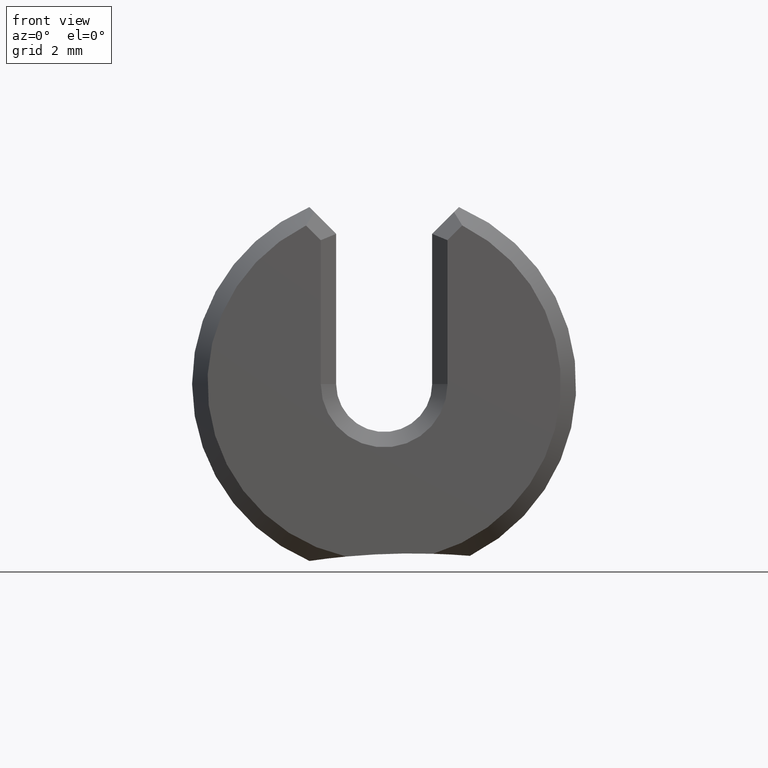
[diagram: clean part render]
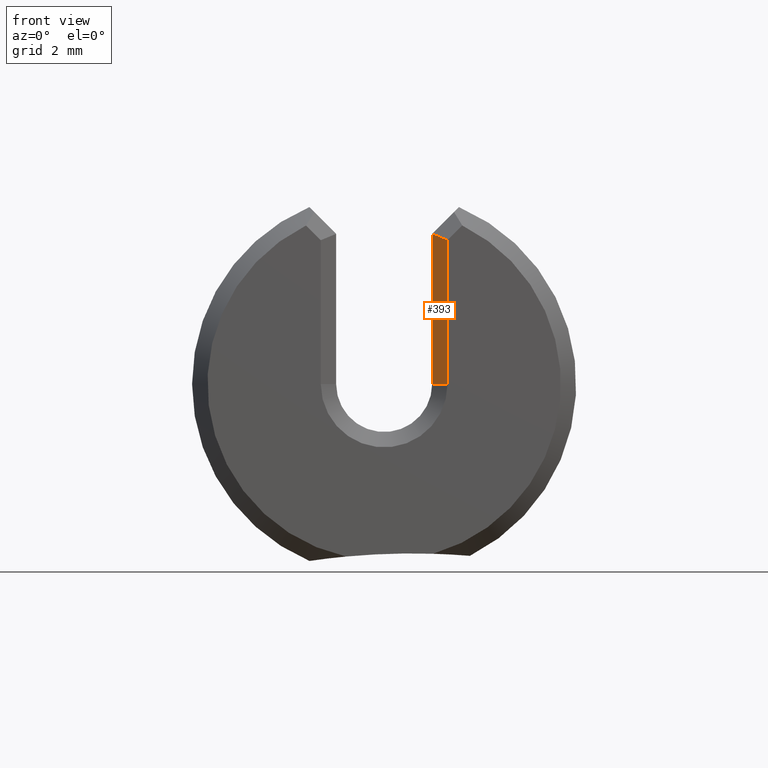
[diagram: same view with one face highlighted and labeled with its STEP entity id]
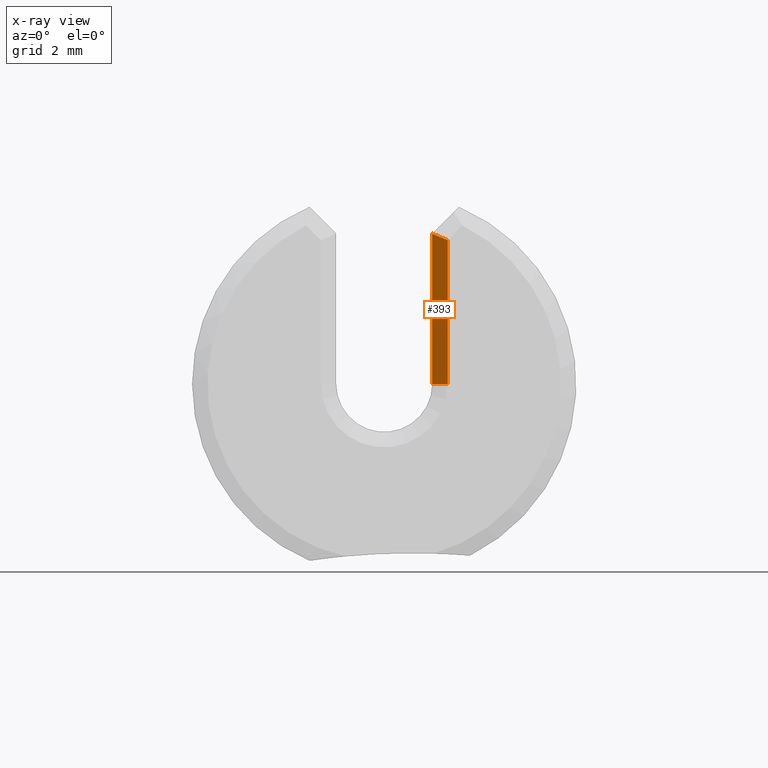
[diagram: x-ray of the same camera — body ghosted, the highlighted face saturated]
A machine part, front view. The second image highlights one B-rep face of the part: STEP entity #393.
The next image is the same camera in x-ray: the body ghosted, the highlighted face saturated — about 0% of this face is hidden behind the body in this view.
In plain terms, the highlighted planar face has unit normal (0.7071, 0.7071, -0).
Its self-contained STEP definition (entity closure, byte-faithful):
#20 = CARTESIAN_POINT ( 'NONE',  ( 0.06187500000000011700, 0.0000000000000000000, 0.0000000000000000000 ) ) ;
#21 = DIRECTION ( 'NONE',  ( 0.0000000000000000000, 0.0000000000000000000, -1.000000000000000000 ) ) ;
#27 = VECTOR ( 'NONE', #309, 39.37007874015748100 ) ;
#29 = LINE ( 'NONE', #322, #27 ) ;
#128 = FACE_OUTER_BOUND ( 'NONE', #731, .T. ) ;
#148 = VECTOR ( 'NONE', #21, 39.37007874015748100 ) ;
#153 = LINE ( 'NONE', #20, #148 ) ;
#204 = CARTESIAN_POINT ( 'NONE',  ( 0.04687500000000000700, 0.01499999999999997700, 0.2816858377267488800 ) ) ;
#213 = DIRECTION ( 'NONE',  ( 0.0000000000000000000, 0.0000000000000000000, 1.000000000000000000 ) ) ;
#214 = DIRECTION ( 'NONE',  ( 0.7071067811865443500, 0.7071067811865507900, -0.0000000000000000000 ) ) ;
#216 = PLANE ( 'NONE',  #516 ) ;
#222 = DIRECTION ( 'NONE',  ( 0.6785983445458518800, -0.6785983445458456700, -0.2810846377148116200 ) ) ;
#225 = CARTESIAN_POINT ( 'NONE',  ( 0.02109796292299801300, 0.04077703707700173300, 0.1572232927085606400 ) ) ;
#269 = CARTESIAN_POINT ( 'NONE',  ( 0.04687500000000000700, 0.01499999999999997700, 0.0000000000000000000 ) ) ;
#272 = CARTESIAN_POINT ( 'NONE',  ( 0.04687500000000000700, 0.01499999999999997700, 0.1465460943534724600 ) ) ;
#274 = CARTESIAN_POINT ( 'NONE',  ( 0.06187500000000011700, 0.0000000000000000000, 0.0000000000000000000 ) ) ;
#309 = DIRECTION ( 'NONE',  ( 0.0000000000000000000, 0.0000000000000000000, 1.000000000000000000 ) ) ;
#314 = DIRECTION ( 'NONE',  ( 0.7071067811865507900, -0.7071067811865443500, 0.0000000000000000000 ) ) ;
#316 = CARTESIAN_POINT ( 'NONE',  ( 0.04687500000000000700, 0.01499999999999997700, 0.0000000000000000000 ) ) ;
#322 = CARTESIAN_POINT ( 'NONE',  ( 0.04687500000000000700, 0.01499999999999997700, 0.2816858377267488800 ) ) ;
#329 = CARTESIAN_POINT ( 'NONE',  ( 0.06187500000000011700, 0.0000000000000000000, 0.1403328909178764600 ) ) ;
#393 = ADVANCED_FACE ( 'NONE', ( #128 ), #216, .F. ) ;
#438 = VERTEX_POINT ( 'NONE', #329 ) ;
#439 = VERTEX_POINT ( 'NONE', #274 ) ;
#451 = VERTEX_POINT ( 'NONE', #272 ) ;
#454 = VERTEX_POINT ( 'NONE', #269 ) ;
#466 = LINE ( 'NONE', #225, #600 ) ;
#468 = VECTOR ( 'NONE', #314, 39.37007874015748100 ) ;
#470 = LINE ( 'NONE', #316, #468 ) ;
#516 = AXIS2_PLACEMENT_3D ( 'NONE', #204, #214, #213 ) ;
#517 = EDGE_CURVE ( 'NONE', #454, #439, #470, .T. ) ;
#531 = EDGE_CURVE ( 'NONE', #451, #438, #466, .T. ) ;
#567 = EDGE_CURVE ( 'NONE', #438, #439, #153, .T. ) ;
#586 = EDGE_CURVE ( 'NONE', #454, #451, #29, .T. ) ;
#600 = VECTOR ( 'NONE', #222, 39.37007874015748900 ) ;
#700 = ORIENTED_EDGE ( 'NONE', *, *, #517, .T. ) ;
#701 = ORIENTED_EDGE ( 'NONE', *, *, #567, .F. ) ;
#702 = ORIENTED_EDGE ( 'NONE', *, *, #531, .F. ) ;
#703 = ORIENTED_EDGE ( 'NONE', *, *, #586, .F. ) ;
#731 = EDGE_LOOP ( 'NONE', ( #700, #701, #702, #703 ) ) ;